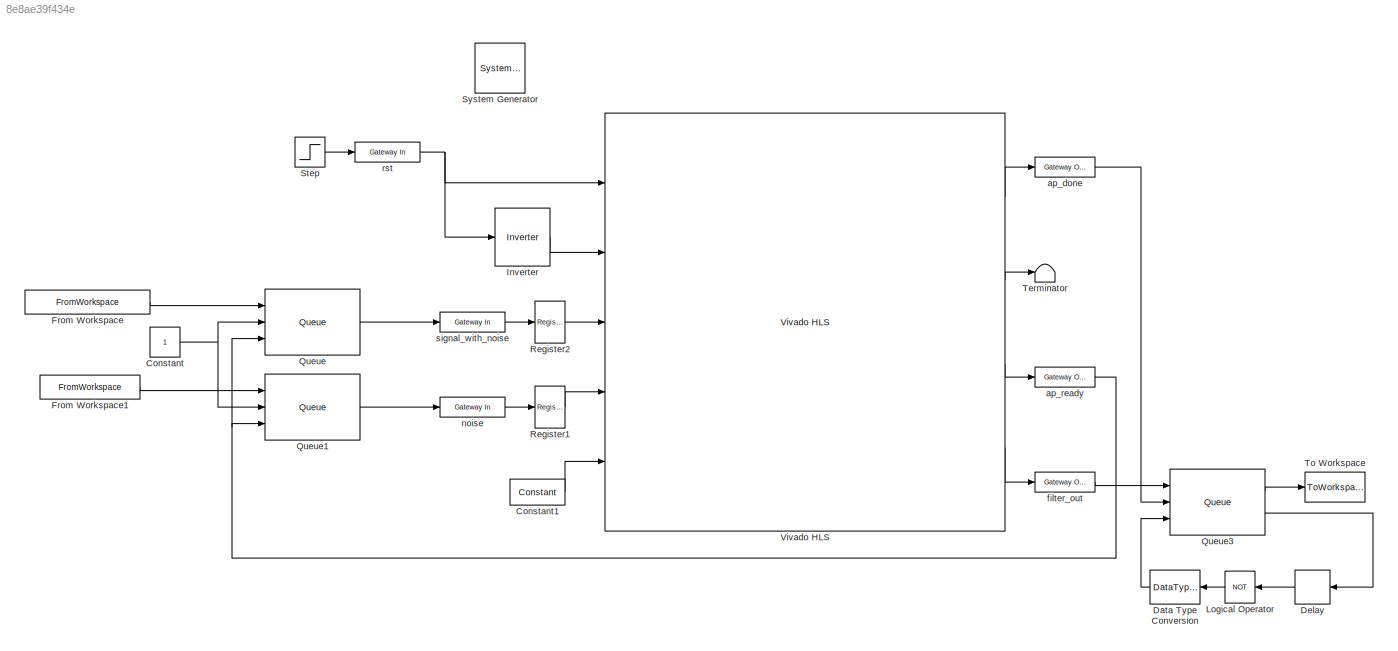
MODEL slx_8e8ae39f434e
KIND model
CONFIG AbsTol = auto
CONFIG FixedStep = auto
CONFIG MaxStep = auto
CONFIG MinStep = auto
CONFIG RelTol = 1e-3
CONFIG SampleTimeConstraint = Unconstrained
CONFIG Solver = ode45
CONFIG SolverMode = Auto
CONFIG SolverName = ode45
CONFIG StartTime = 0.0
CONFIG StopTime = NUM_SIM_CYCLES
BLOCK [Reference]  System Generator  REF=xbsIndex_r4/ System Generator
  AttributesFormatString = System\nGenerator
  Impl_file = Vivado Implementation Defaults
  Ports = []
  SourceBlock = xbsIndex_r4/ System Generator
  SourceType = Xilinx System Generator Block
  Synth_file = Vivado Synthesis Defaults
  Tag = genX
  UserDataPersistent = on
  block_type = sysgen
  clock_wrapper = Clock Enables
  core_generation = According to Block Masks
  dbl_ovrd = According to Block Masks
  dcm_input_clock_period = 10
  deprecated_control = off
  directory = ./netlist
  eval_field = 0
  has_advanced_control = 0
  incr_netlist = off
  infoedit = System Generator
  package = ffg900
  part = xc7k325t
  proj_type = Vivado
  run_coregen = off
  sg_icon_stat = 50,50,0,0,token,white,0,58c5b5770fe5f7c311f53dbc6e73f0f6,right,,[ ],[ ]
  sg_mask_display = fprintf('','COMMENT: begin icon graphics');\npatch([0 50 50 0 0 ],[0 0 50 50 0 ],[1 1 1 ]);\npatch([1.6375 16.81 27.31 37.81 48.31 27.31 12.1375 1.6375 ],[36.655 36.655 47.155 36.655 47.155 47.155 47.155 36.655 ],[0.933333 0.203922 0.141176 ]);\npatch([12.1375 27.31 16.81 1.6375 12.1375 ],[26.155 26.155 36.655 36.655 26.155 ],[0.698039 0.0313725 0.219608 ]);\npatch([1.6375 16.81 27.31 12.1375 1.6375 ]...<+327ch>
  sggui_pos = 161,338,464,400
  simulink_period = 1
  speed = -2
  synthesis_tool = Vivado
  sysclk_period = 20
  testbench = off
  trim_vbits = Everywhere in SubSystem
  xilinxfamily = kintex7
BLOCK [Constant] Constant
BLOCK [Reference] Constant1  REF=xbsIndex_r4/Constant
  Ports = [0, 1]
  SourceBlock = xbsIndex_r4/Constant
  SourceType = Xilinx Constant Block Block
  arith_type = Signed (2's comp)
  bin_pt = 0
  block_type = constant
  carry = CIN
  const = STEP_SIZE
  dbl_ovrd = off
  dsp48_infoedit = The use of this block for DSP48 instructions is deprecated.  Please use the Opmode block.
  equ = P=C
  exp_width = 8
  explicit_period = on
  frac_width = 24
  gui_display_data_type = Fixed-point
  has_advanced_control = 0
  inp1 = P
  inp2 = PCIN>>17
  n_bits = 16
  opr = +
  opselect = C
  period = 1
  preci_type = Single
  sg_icon_stat = 55,26,0,1,white,blue,0,7c9ffc50,right,,[ ],[ ]
  sg_mask_display = fprintf('','COMMENT: begin icon graphics');\npatch([0 55 55 0 0 ],[0 0 26 26 0 ],[0.77 0.82 0.91 ]);\nplot([0 55 55 0 0 ],[0 0 26 26 0 ]);\npatch([20.325 24.66 27.66 30.66 33.66 27.66 23.325 20.325 ],[16.33 16.33 19.33 16.33 19.33 19.33 19.33 16.33 ],[1 1 1 ]);\npatch([23.325 27.66 24.66 20.325 23.325 ],[13.33 13.33 16.33 16.33 13.33 ],[0.931 0.946 0.973 ]);\npatch([20.325 24.66 27.66 23.325 20.325 ],[...<+325ch>
  sggui_pos = 20,20,349,491
BLOCK [DataTypeConversion] Data Type Conversion
  RndMeth = Floor
  SaturateOnIntegerOverflow = off
BLOCK [Delay] Delay
  DelayLength = 1
  InitialCondition = 0
  InputPortMap = u0
  Ports = [1, 1]
BLOCK [FromWorkspace] From Workspace
  SampleTime = 1
  VariableName = signal_with_noise_ts
  ZeroCross = on
BLOCK [FromWorkspace] From Workspace1
  SampleTime = 1
  VariableName = noise_ts
  ZeroCross = on
BLOCK [Reference] Inverter  REF=xbsIndex_r4/Inverter
  Ports = [1, 1]
  SourceBlock = xbsIndex_r4/Inverter
  SourceType = Xilinx Inverter Block
  block_type = inv
  dbl_ovrd = off
  en = off
  has_advanced_control = 0
  infoedit = Bitwise logical negation (one's complement) operator.
  latency = 1
  sg_icon_stat = 55,58,1,1,white,blue,0,e69ac283,right,,[ ],[ ]
  sg_mask_display = fprintf('','COMMENT: begin icon graphics');\npatch([0 55 55 0 0 ],[0 0 58 58 0 ],[0.77 0.82 0.91 ]);\nplot([0 55 55 0 0 ],[0 0 58 58 0 ]);\npatch([11.425 21.54 28.54 35.54 42.54 28.54 18.425 11.425 ],[36.77 36.77 43.77 36.77 43.77 43.77 43.77 36.77 ],[1 1 1 ]);\npatch([18.425 28.54 21.54 11.425 18.425 ],[29.77 29.77 36.77 36.77 29.77 ],[0.931 0.946 0.973 ]);\npatch([11.425 21.54 28.54 18.425 11.425 ],[...<+372ch>
  sggui_pos = -1,-1,-1,-1
  xl_area = [0,0,0,0,0,0,0]
  xl_use_area = off
BLOCK [Logic] Logical Operator
  AllPortsSameDT = off
  Operator = NOT
  OutDataTypeStr = boolean
  Ports = [1, 1]
BLOCK [Reference] Queue  REF=dspbuff3/Queue
  Ports = [3, 1]
  SourceBlock = dspbuff3/Queue
  SourceType = Queue
  adf = on
  clr = off
  clrOutport = off
  depth = 65536
  eso = off
  fso = off
  nso = off
  overflow = Dynamic reallocation
  pes = Warning
  trigger = Non-zero sample
BLOCK [Reference] Queue1  REF=dspbuff3/Queue
  Ports = [3, 1]
  SourceBlock = dspbuff3/Queue
  SourceType = Queue
  adf = on
  clr = off
  clrOutport = off
  depth = 65536
  eso = off
  fso = off
  nso = off
  overflow = Dynamic reallocation
  pes = Warning
  trigger = Non-zero sample
BLOCK [Reference] Queue3  REF=dspbuff3/Queue
  Ports = [3, 2]
  SourceBlock = dspbuff3/Queue
  SourceType = Queue
  adf = on
  clr = off
  clrOutport = off
  depth = 65536
  eso = on
  fso = off
  nso = off
  overflow = Dynamic reallocation
  pes = Warning
  trigger = Non-zero sample
BLOCK [Reference] Register1  REF=xbsIndex_r4/Register
  Ports = [1, 1]
  SourceBlock = xbsIndex_r4/Register
  SourceType = Xilinx Register Block
  block_type = register
  dbl_ovrd = off
  en = off
  has_advanced_control = 0
  init = 0
  rst = off
  sg_icon_stat = 30,42,1,1,white,blue,0,c80657c5,right,,[ ],[ ]
  sg_mask_display = fprintf('','COMMENT: begin icon graphics');\npatch([0 30 30 0 0 ],[0 0 42 42 0 ],[0.77 0.82 0.91 ]);\nplot([0 30 30 0 0 ],[0 0 42 42 0 ]);\npatch([6.1 11.88 15.88 19.88 23.88 15.88 10.1 6.1 ],[25.44 25.44 29.44 25.44 29.44 29.44 29.44 25.44 ],[1 1 1 ]);\npatch([10.1 15.88 11.88 6.1 10.1 ],[21.44 21.44 25.44 25.44 21.44 ],[0.931 0.946 0.973 ]);\npatch([6.1 11.88 15.88 10.1 6.1 ],[17.44 17.44 21.44 21.44...<+385ch>
  sggui_pos = -1,-1,-1,-1
  xl_area = [0,0,0,0,0,0,0]
  xl_use_area = off
BLOCK [Reference] Register2  REF=xbsIndex_r4/Register
  Ports = [1, 1]
  SourceBlock = xbsIndex_r4/Register
  SourceType = Xilinx Register Block
  block_type = register
  dbl_ovrd = off
  en = off
  has_advanced_control = 0
  init = 0
  rst = off
  sg_icon_stat = 30,42,1,1,white,blue,0,c80657c5,right,,[ ],[ ]
  sg_mask_display = fprintf('','COMMENT: begin icon graphics');\npatch([0 30 30 0 0 ],[0 0 42 42 0 ],[0.77 0.82 0.91 ]);\nplot([0 30 30 0 0 ],[0 0 42 42 0 ]);\npatch([6.1 11.88 15.88 19.88 23.88 15.88 10.1 6.1 ],[25.44 25.44 29.44 25.44 29.44 29.44 29.44 25.44 ],[1 1 1 ]);\npatch([10.1 15.88 11.88 6.1 10.1 ],[21.44 21.44 25.44 25.44 21.44 ],[0.931 0.946 0.973 ]);\npatch([6.1 11.88 15.88 10.1 6.1 ],[17.44 17.44 21.44 21.44...<+385ch>
  sggui_pos = -1,-1,-1,-1
  xl_area = [0,0,0,0,0,0,0]
  xl_use_area = off
BLOCK [Step] Step
  After = 0
  Before = 1
  SampleTime = 0
  Time = 10
BLOCK [Terminator] Terminator
BLOCK [ToWorkspace] To Workspace
  FixptAsFi = on
  MaxDataPoints = inf
  Ports = [1]
  SampleTime = -1
  Save2DSignal = 3-D array (concatenate along third dimension)
  SaveFormat = Timeseries
  VariableName = output_sg
BLOCK [Reference] Vivado HLS  REF=xbsIndex_r4/Vivado HLS
  Ports = [5, 4]
  SourceBlock = xbsIndex_r4/Vivado HLS
  SourceType = Xilinx High Level Synthesis Block
  anytable = '../vhls/proj/hls_adaptive_filter_v1_0/max_throughput'
  block_type = hls
  display_datatype = on
  fast_sim = on
  has_advanced_control = 0
  infoedit = This block allows including C,C++ and SystemC source files in System Generator for DSP designs.
  latency = 1
  model_file_path = ''
  rate_propagation_method = Simulink system period
  sg_icon_stat = 400,418,5,4,white,blue,0,13edda55,right,,[ ],[ ]
  sg_mask_display = fprintf('','COMMENT: begin icon graphics');\npatch([0 400 400 0 0 ],[0 0 418 418 0 ],[0.77 0.82 0.91 ]);\nplot([0 400 400 0 0 ],[0 0 418 418 0 ]);\npatch([73.175 155.54 212.54 269.54 326.54 212.54 130.175 73.175 ],[272.27 272.27 329.27 272.27 329.27 329.27 329.27 272.27 ],[1 1 1 ]);\npatch([130.175 212.54 155.54 73.175 130.175 ],[215.27 215.27 272.27 272.27 215.27 ],[0.931 0.946 0.973 ]);\npatch([73.17...<+902ch>
  sggui_pos = 20,20,963,857
BLOCK [Reference] ap_done  REF=xbsIndex_r4/Gateway Out
  DACChannel = '1'
  LOCs = {}
  Ports = [1, 1]
  SourceBlock = xbsIndex_r4/Gateway Out
  SourceType = Xilinx Gateway Out Block
  UseAsDAC = off
  address_offset = hex2dec('00')
  automatic_assignment = on
  block_type = gatewayout
  columns = 1
  has_advanced_control = 0
  hdl_port = on
  infoedit = Gateway out block.  Converts Xilinx fixed-point or floating-point type inputs into ouputs of type Simulink integer, single, double, or fixed-point.<br><br>Hardware notes:  In hardware these blocks become top level output ports or are discarded, depending on how they are configured.  <repeated x3 — deduplicated; at blocks: ap_done, ap_ready, filter_out>
  inherit_from_input = off
  interface = None
  intf_description = ''
  intf_name = ''
  io_standard = {}
  locs_specified = off
  rows = 1
  sg_icon_stat = 60,20,1,1,white,yellow,1,cc31b7ac,right,,[ ],[ ]
  sg_mask_display = fprintf('','COMMENT: begin icon graphics');\npatch([0 60 60 0 0 ],[0 0 20 20 0 ],[0.95 0.93 0.65 ]);\nplot([0 60 60 0 0 ],[0 0 20 20 0 ]);\npatch([25.55 28.44 30.44 32.44 34.44 30.44 27.55 25.55 ],[12.22 12.22 14.22 12.22 14.22 14.22 14.22 12.22 ],[1 1 1 ]);\npatch([27.55 30.44 28.44 25.55 27.55 ],[10.22 10.22 12.22 12.22 10.22 ],[0.985 0.979 0.895 ]);\npatch([25.55 28.44 30.44 27.55 25.55 ],[8.22 8.22...<+384ch>  <repeated x3 — deduplicated; at blocks: ap_done, ap_ready, filter_out>
  sggui_pos = -1,-1,-1,-1
  timing_constraint = None
  xl_area = [0,0,0,0,0,0,0]
  xl_use_area = off
BLOCK [Reference] ap_ready  REF=xbsIndex_r4/Gateway Out
  DACChannel = '1'
  LOCs = {}
  Ports = [1, 1]
  SourceBlock = xbsIndex_r4/Gateway Out
  SourceType = Xilinx Gateway Out Block
  UseAsDAC = off
  address_offset = hex2dec('00')
  automatic_assignment = on
  block_type = gatewayout
  columns = 1
  has_advanced_control = 0
  hdl_port = on
  inherit_from_input = off
  interface = None
  intf_description = ''
  intf_name = ''
  io_standard = {}
  locs_specified = off
  rows = 1
  sg_icon_stat = 60,20,1,1,white,yellow,1,cc31b7ac,right,,[ ],[ ]
  sggui_pos = -1,-1,-1,-1
  timing_constraint = None
  xl_area = [0,0,0,0,0,0,0]
  xl_use_area = off
BLOCK [Reference] filter_out  REF=xbsIndex_r4/Gateway Out
  DACChannel = '1'
  LOCs = {}
  Ports = [1, 1]
  SourceBlock = xbsIndex_r4/Gateway Out
  SourceType = Xilinx Gateway Out Block
  UseAsDAC = off
  address_offset = hex2dec('00')
  automatic_assignment = on
  block_type = gatewayout
  columns = 1
  has_advanced_control = 0
  hdl_port = on
  inherit_from_input = off
  interface = None
  intf_description = ''
  intf_name = ''
  io_standard = {}
  locs_specified = off
  rows = 1
  sg_icon_stat = 60,20,1,1,white,yellow,1,cc31b7ac,right,,[ ],[ ]
  sggui_pos = -1,-1,-1,-1
  timing_constraint = None
  xl_area = [0,0,0,0,0,0,0]
  xl_use_area = off
BLOCK [Reference] noise  REF=xbsIndex_r4/Gateway In
  ADCChannel = '1'
  LOCs = {}
  Ports = [1, 1]
  SourceBlock = xbsIndex_r4/Gateway In
  SourceType = Xilinx Gateway In Block
  UseAsADC = off
  address_offset = hex2dec('00')
  arith_type = Signed  (2's comp)
  automatic_assignment = on
  bin_pt = 0
  block_type = gatewayin
  columns = 1
  dbl_ovrd = off
  exp_width = 8
  frac_width = 24
  gui_display_data_type = Fixed-point
  has_advanced_control = 0
  hdl_port = on
  infoedit = Gateway in block.  Converts inputs of type Simulink integer, single, double and fixed-point to  Xilinx fixed-point or floating-point data type.<br><br>Hardware notes:  In hardware these blocks become top level input ports.  <repeated x3 — deduplicated; at blocks: noise, rst, signal_with_noise>
  inherit_from_input = off
  interface = None
  intf_description = ''
  intf_name = ''
  io_standard = {}
  locs_specified = off
  n_bits = 16
  overflow = Saturate
  period = 1
  preci_type = Single
  quantization = Round  (unbiased: +/- Inf)
  rows = 1
  sg_icon_stat = 65,20,1,1,white,yellow,1,00d3666e,right,,[ ],[ ]
  sg_mask_display = fprintf('','COMMENT: begin icon graphics');\npatch([0 65 65 0 0 ],[0 0 20 20 0 ],[0.95 0.93 0.65 ]);\nplot([0 65 65 0 0 ],[0 0 20 20 0 ]);\npatch([27.55 30.44 32.44 34.44 36.44 32.44 29.55 27.55 ],[12.22 12.22 14.22 12.22 14.22 14.22 14.22 12.22 ],[1 1 1 ]);\npatch([29.55 32.44 30.44 27.55 29.55 ],[10.22 10.22 12.22 12.22 10.22 ],[0.985 0.979 0.895 ]);\npatch([27.55 30.44 32.44 29.55 27.55 ],[8.22 8.22...<+383ch>  <repeated x3 — deduplicated; at blocks: noise, rst, signal_with_noise>
  sggui_pos = 20,20,405,777
  timing_constraint = None
  xl_area = [0,0,0,0,0,0,0]
  xl_use_area = off
BLOCK [Reference] rst  REF=xbsIndex_r4/Gateway In
  ADCChannel = '1'
  LOCs = {}
  Ports = [1, 1]
  SourceBlock = xbsIndex_r4/Gateway In
  SourceType = Xilinx Gateway In Block
  UseAsADC = off
  address_offset = hex2dec('00')
  arith_type = Boolean
  automatic_assignment = on
  bin_pt = 14
  block_type = gatewayin
  columns = 1
  dbl_ovrd = off
  exp_width = 8
  frac_width = 24
  gui_display_data_type = Boolean
  has_advanced_control = 0
  hdl_port = on
  inherit_from_input = off
  interface = None
  intf_description = ''
  intf_name = ''
  io_standard = {}
  locs_specified = off
  n_bits = 16
  overflow = Saturate
  period = 1
  preci_type = Single
  quantization = Round  (unbiased: +/- Inf)
  rows = 1
  sg_icon_stat = 65,20,1,1,white,yellow,1,00d3666e,right,,[ ],[ ]
  sggui_pos = 20,20,405,777
  timing_constraint = None
  xl_area = [0,0,0,0,0,0,0]
  xl_use_area = off
BLOCK [Reference] signal_with_noise  REF=xbsIndex_r4/Gateway In
  ADCChannel = '1'
  LOCs = {}
  Ports = [1, 1]
  SourceBlock = xbsIndex_r4/Gateway In
  SourceType = Xilinx Gateway In Block
  UseAsADC = off
  address_offset = hex2dec('00')
  arith_type = Signed  (2's comp)
  automatic_assignment = on
  bin_pt = 0
  block_type = gatewayin
  columns = 1
  dbl_ovrd = off
  exp_width = 8
  frac_width = 24
  gui_display_data_type = Fixed-point
  has_advanced_control = 0
  hdl_port = on
  inherit_from_input = off
  interface = None
  intf_description = ''
  intf_name = ''
  io_standard = {}
  locs_specified = off
  n_bits = 16
  overflow = Saturate
  period = 1
  preci_type = Single
  quantization = Round  (unbiased: +/- Inf)
  rows = 1
  sg_icon_stat = 65,20,1,1,white,yellow,1,00d3666e,right,,[ ],[ ]
  sggui_pos = 20,20,405,777
  timing_constraint = None
  xl_area = [0,0,0,0,0,0,0]
  xl_use_area = off
LINE Constant1:1 -> Vivado HLS:5
NET Constant:1 -> Queue1:2, Queue:2
LINE Data Type Conversion:1 -> Queue3:3
LINE Delay:1 -> Logical Operator:1
LINE From Workspace1:1 -> Queue1:1
LINE From Workspace:1 -> Queue:1
LINE Inverter:1 -> Vivado HLS:2
LINE Logical Operator:1 -> Data Type Conversion:1
LINE Queue1:1 -> noise:1
LINE Queue3:1 -> To Workspace:1
LINE Queue3:2 -> Delay:1
LINE Queue:1 -> signal_with_noise:1
LINE Register1:1 -> Vivado HLS:4
LINE Register2:1 -> Vivado HLS:3
LINE Step:1 -> rst:1
LINE Vivado HLS:1 -> ap_done:1
LINE Vivado HLS:2 -> Terminator:1
LINE Vivado HLS:3 -> ap_ready:1
LINE Vivado HLS:4 -> filter_out:1
LINE ap_done:1 -> Queue3:2
NET ap_ready:1 -> Queue1:3, Queue:3
LINE filter_out:1 -> Queue3:1
LINE noise:1 -> Register1:1
NET rst:1 -> Inverter:1, Vivado HLS:1
LINE signal_with_noise:1 -> Register2:1
note: NET lines group one-source signal fan-out (src -> all destinations, sorted); 1:1 wires keep LINE
